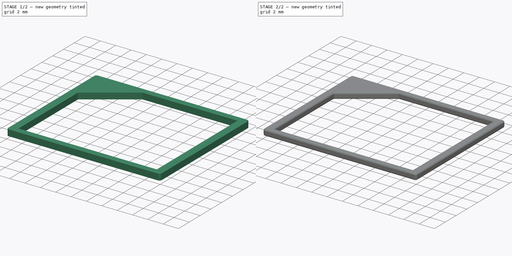
[diagram: build sequence overview — one tinted view per stage of 2, left to right]
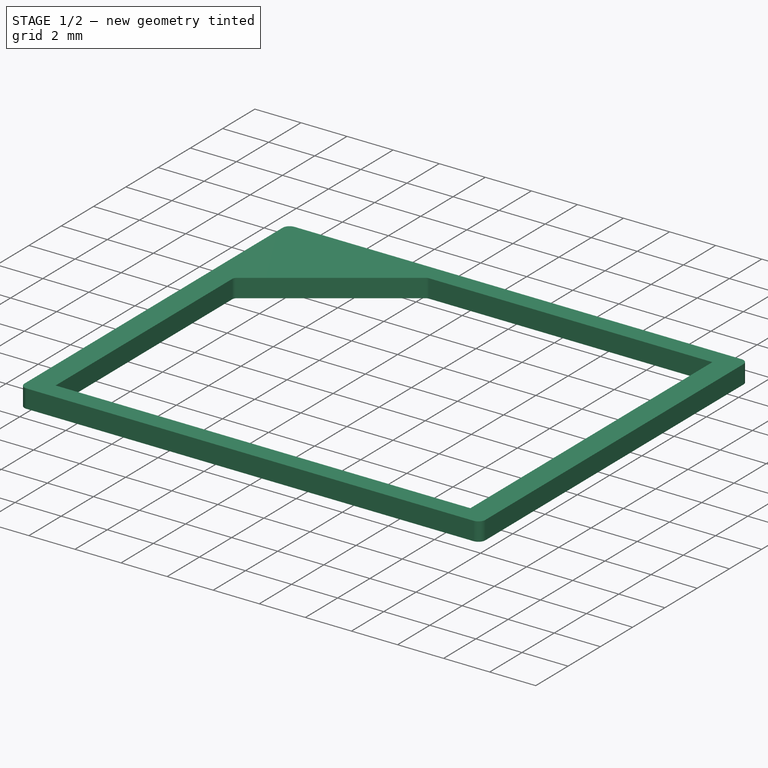
[diagram: stage 1 of 2 — iso view after this stage's code; geometry added in this stage tinted green]
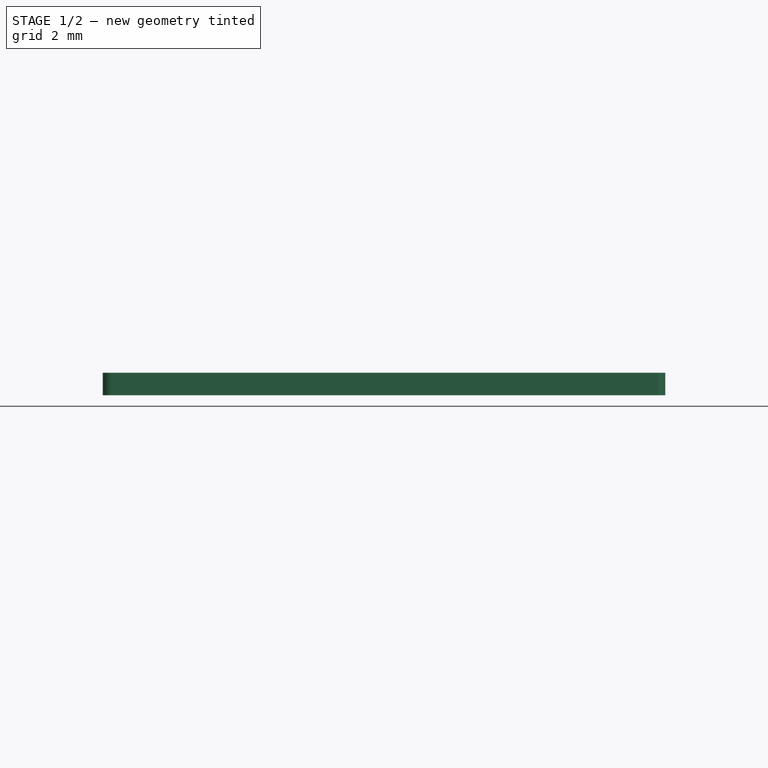
[diagram: stage 1 of 2 — front view after this stage's code; geometry added in this stage tinted green]
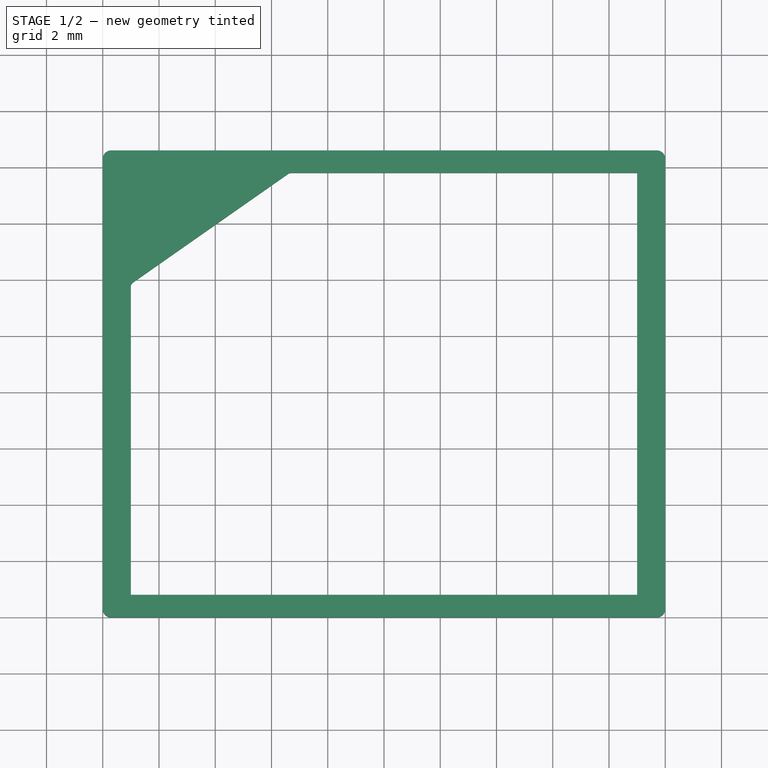
[diagram: stage 1 of 2 — top view after this stage's code; geometry added in this stage tinted green]
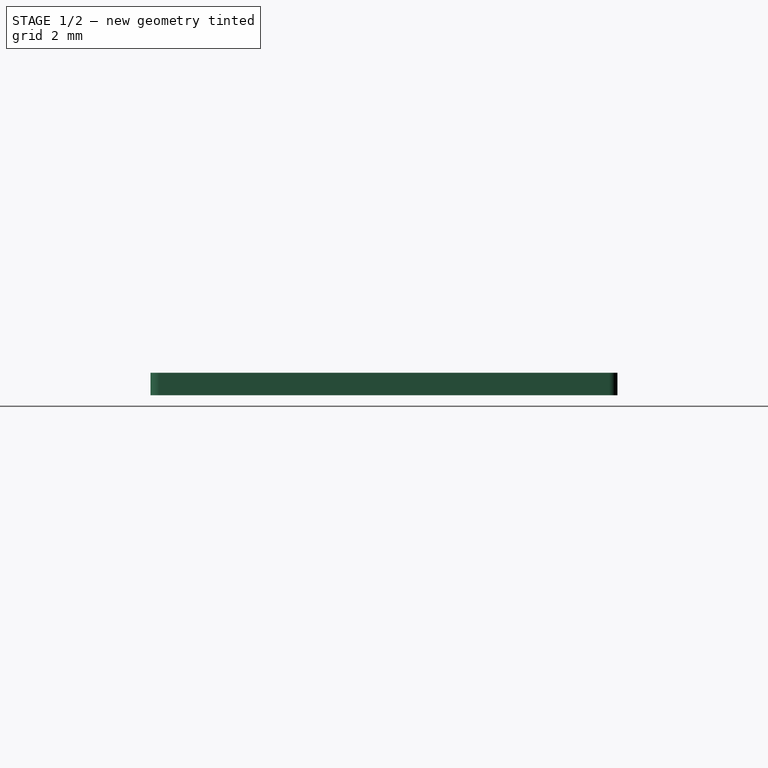
[diagram: stage 1 of 2 — right view after this stage's code; geometry added in this stage tinted green]
FCSTD DOCUMENT  (FreeCAD 0.17R13528 (Git))
Label: NutriFrame2
License: All rights reserved
LicenseURL: http://en.wikipedia.org/wiki/All_rights_reserved
objects: Sketcher::SketchObject×1, PartDesign::Pad×1, PartDesign::Fillet×1, PartDesign::Body×1
note: 5 computed .brp shape members not serialized (recipe doc carries the construction recipe); baked Part::Feature solids carry a one-line shape summary decoded from their .brp

FEATURE [Sketcher::SketchObject] Sketch
  MapMode = 5
  Support = -> [XY_Plane]
  sketch-geometry (15):
    g0: LineSegment StartX=0.3 StartY=0 StartZ=0 EndX=19.7 EndY=0 EndZ=0
    g1: LineSegment StartX=19.7 StartY=16.6 StartZ=0 EndX=0.3 EndY=16.6 EndZ=0
    g2: LineSegment StartX=0 StartY=16.3 StartZ=0 EndX=0 EndY=0.3 EndZ=0
    g3: LineSegment StartX=19 StartY=15.8 StartZ=0 EndX=19 EndY=0.8 EndZ=0
    g4: LineSegment StartX=19 StartY=0.8 StartZ=0 EndX=1 EndY=0.8 EndZ=0
    g5: LineSegment StartX=1 StartY=0.8 StartZ=0 EndX=1 EndY=11.7489 EndZ=0
    g6: ArcOfCircle CenterX=0.3 CenterY=16.3 CenterZ=0 NormalX=0 NormalY=0 NormalZ=1 AngleXU=0 Radius=0.3 StartAngle=1.5708 EndAngle=3.14159
    g7: ArcOfCircle CenterX=0.3 CenterY=0.3 CenterZ=0 NormalX=0 NormalY=0 NormalZ=1 AngleXU=0 Radius=0.3 StartAngle=3.14159 EndAngle=4.71239
    g8: ArcOfCircle CenterX=19.7 CenterY=0.3 CenterZ=0 NormalX=0 NormalY=0 NormalZ=1 AngleXU=0 Radius=0.3 StartAngle=4.71239 EndAngle=6.28319
    g9: LineSegment StartX=20 StartY=16.3 StartZ=0 EndX=20 EndY=0.3 EndZ=0
    g10: ArcOfCircle CenterX=19.7 CenterY=16.3 CenterZ=0 NormalX=0 NormalY=0 NormalZ=1 AngleXU=0 Radius=0.3 StartAngle=0 EndAngle=1.5708
    g11: LineSegment StartX=1.08528 StartY=11.9127 StartZ=0 EndX=6.58528 EndY=15.7638 EndZ=0
    g12: LineSegment StartX=6.7 StartY=15.8 StartZ=0 EndX=19 EndY=15.8 EndZ=0
    g13: ArcOfCircle CenterX=1.2 CenterY=11.7489 CenterZ=0 NormalX=0 NormalY=0 NormalZ=1 AngleXU=0 Radius=0.2 StartAngle=2.18166 EndAngle=3.14159
    g14: ArcOfCircle CenterX=6.7 CenterY=15.6 CenterZ=0 NormalX=0 NormalY=0 NormalZ=1 AngleXU=0 Radius=0.2 StartAngle=1.5708 EndAngle=2.18166
  constraints (40):
    c: Horizontal(g0)
    c: Horizontal(g1)
    c: Vertical(g2)
    c: Coincident(g3,g4)
    c: Coincident(g4,g5)
    c: Horizontal(g4)
    c: Vertical(g3)
    c: Vertical(g5)
    c: Tangent(g2,g6) = -1.5708
    c: Tangent(g1,g6) = -1.5708
    c: Tangent(g2,g7) = -1.5708
    c: Tangent(g0,g7) = -1.5708
    c: Tangent(g0,g8) = -1.5708
    c: Equal(g8,g7)
    c: Equal(g7,g6)
    c: Radius(g6) = 0.3
    c: DistanceX(g2,g4) = 1
    c: DistanceY(g0,g3) = 0.8
    c: DistanceY(g0,g1) = 16.6
    c: DistanceX(g-1,g2) = 0
    c: DistanceY(g-1,g0) = 0
    c: Coincident(g9,g8)
    c: Vertical(g9)
    c: Tangent(g9,g8)
    c: DistanceX(g3,g8) = 1
    c: DistanceX(g2,g8) = 20
    c: Tangent(g10,g1) = -1.5708
    c: Tangent(g10,g9) = 1.5708
    c: Equal(g6,g10)
    c: Coincident(g12,g3)
    c: Horizontal(g12)
    c: Tangent(g5,g13) = 1.5708
    c: Tangent(g11,g13) = 1.5708
    c: Tangent(g11,g14) = 1.5708
    c: Tangent(g12,g14) = 1.5708
    c: DistanceY(g3,g1) = 0.8
    c: DistanceX(g12,g1) = 13
    c: Equal(g13,g14)
    c: Angle(g5,g11) = 2.18166
    c: DistanceX(g11,g11) = 5.5
FEATURE [PartDesign::Pad] Pad
  Length = 0.8
  Length2 = 100
  Profile = -> Sketch
  Type = 0
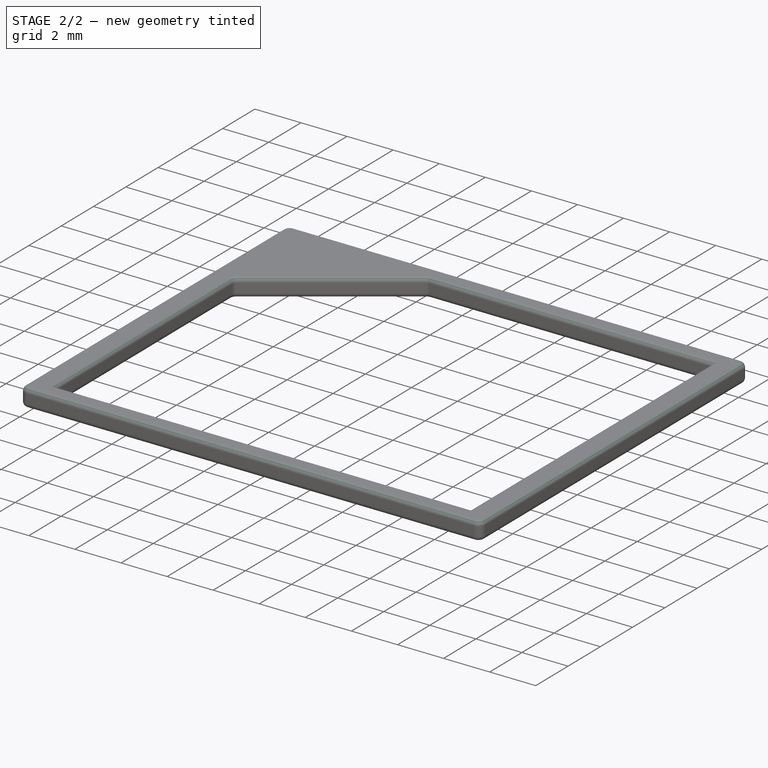
[diagram: stage 2 of 2 — iso view after this stage's code; geometry added in this stage tinted green]
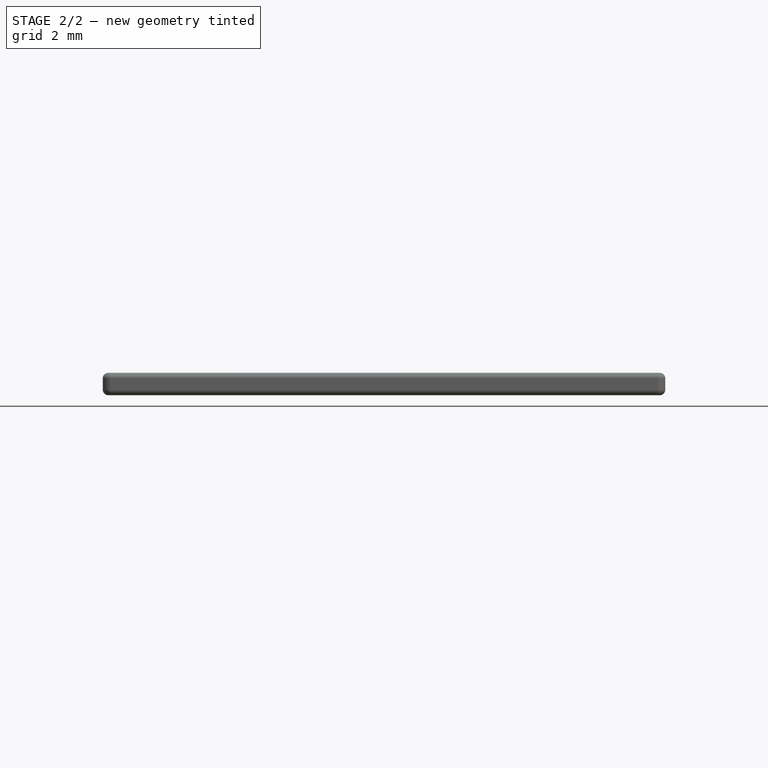
[diagram: stage 2 of 2 — front view after this stage's code; geometry added in this stage tinted green]
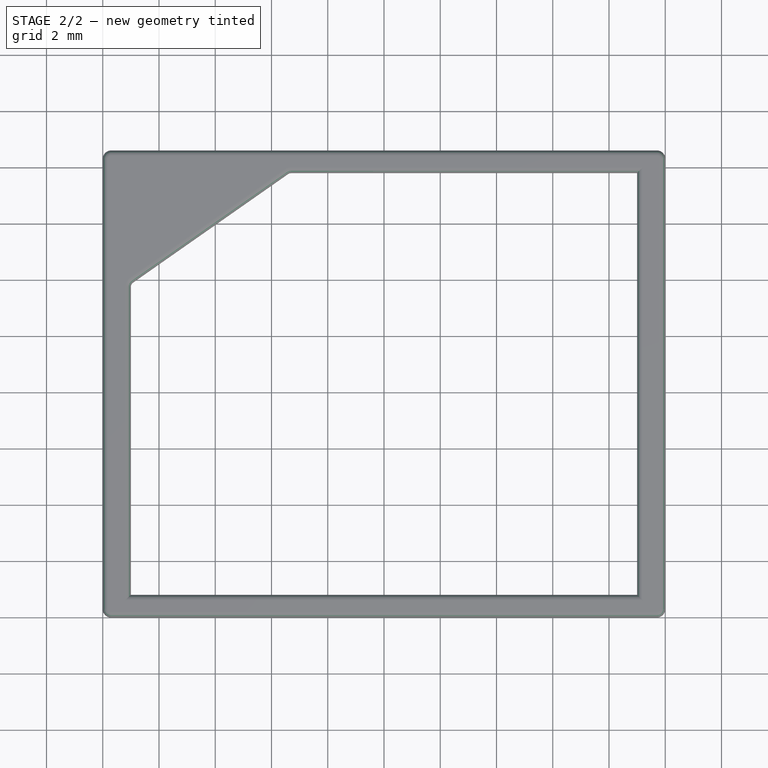
[diagram: stage 2 of 2 — top view after this stage's code; geometry added in this stage tinted green]
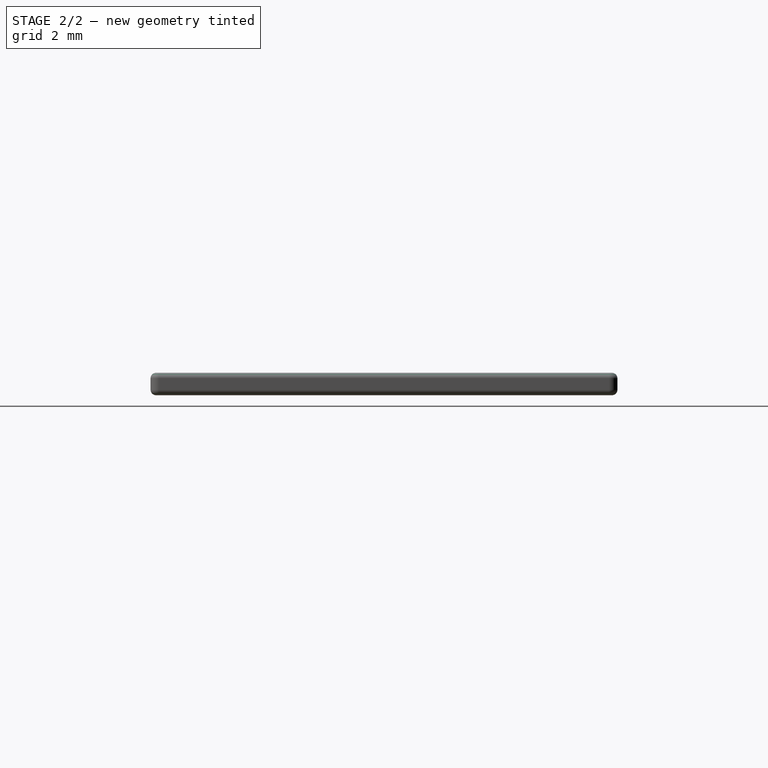
[diagram: stage 2 of 2 — right view after this stage's code; geometry added in this stage tinted green]
FEATURE [PartDesign::Fillet] Fillet
  Base = -> Pad [Edge13,Edge12,Edge36,Edge30,Edge33,Edge27,Edge42,Edge43,Edge37,Edge28,Edge31,Edge34]
  BaseFeature = -> Pad
  Radius = 0.2
FEATURE [PartDesign::Body] Body
  Group = -> [Sketch,Pad,Fillet]
  Origin = -> Origin
  Tip = -> Fillet
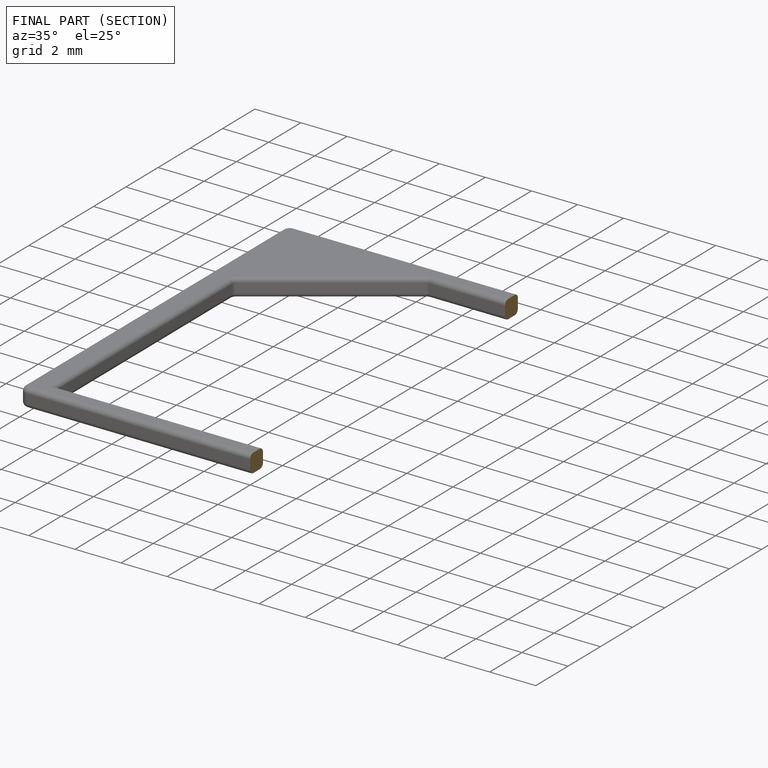
[diagram: finished part — half-section view (interior)]
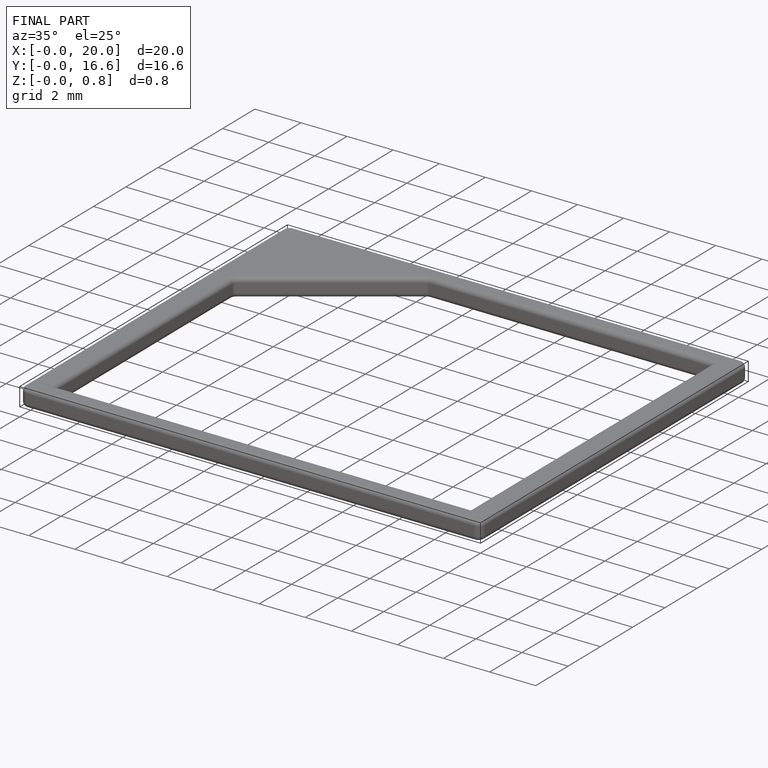
[diagram: finished part — iso view with bounding-box wireframe]
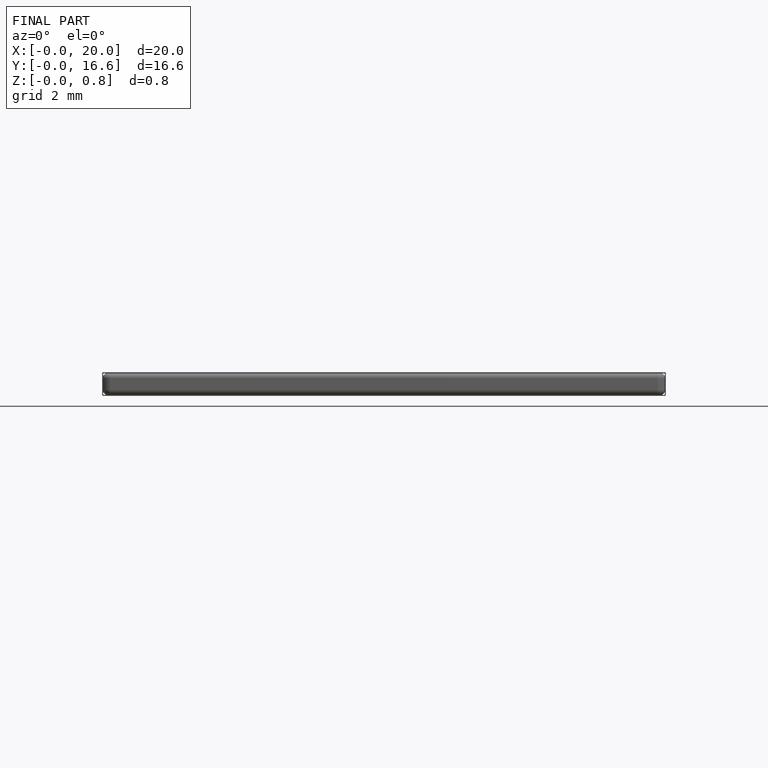
[diagram: finished part — front view with bounding-box wireframe]
